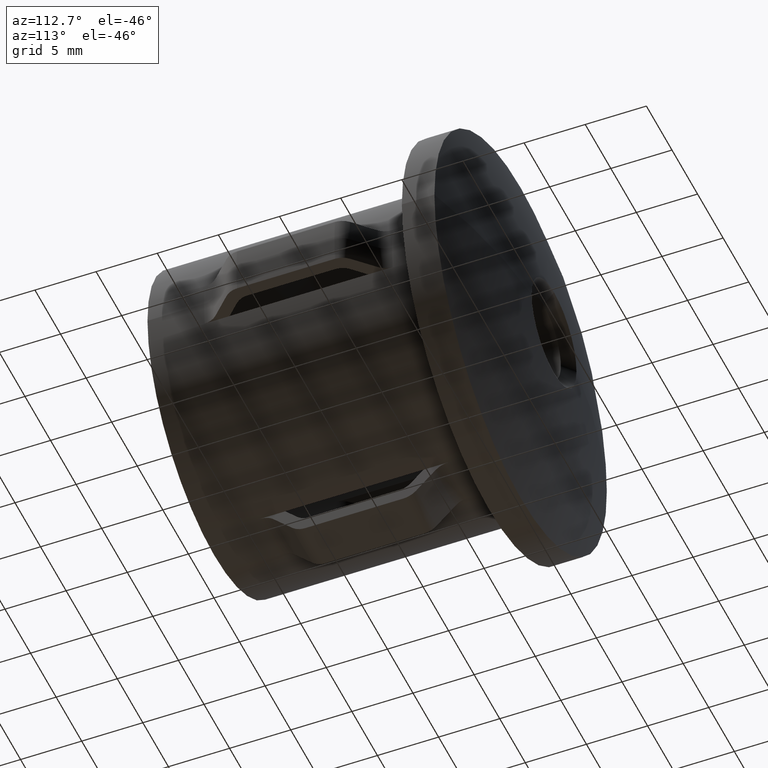
[diagram: clean part render]
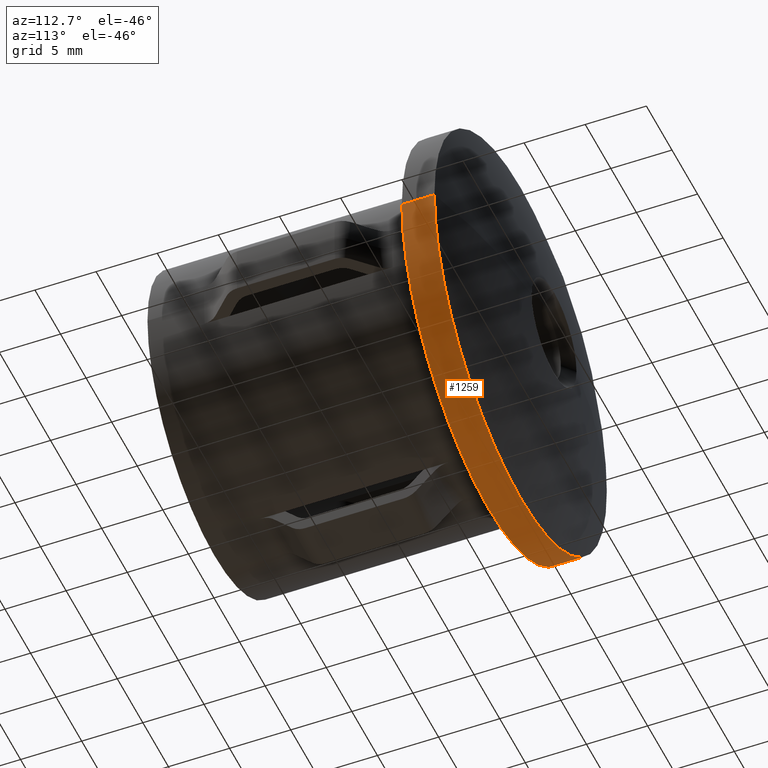
[diagram: same view with one face highlighted and labeled with its STEP entity id]
A machine part, auxiliary view. The second image highlights one B-rep face of the part: STEP entity #1259.
In plain terms, the highlighted cylindrical surface (partial cylindrical patch) has radius 16.85 mm, axis along (-0, -1, -0).
Its self-contained STEP definition (entity closure, byte-faithful):
#22 = ORIENTED_EDGE ( 'NONE', *, *, #10143, .T. ) ;
#319 = DIRECTION ( 'NONE',  ( -2.904862207577519400E-015, -1.000000000000000000, -0.0000000000000000000 ) ) ;
#417 = EDGE_CURVE ( 'NONE', #5926, #6443, #7451, .T. ) ;
#742 = DIRECTION ( 'NONE',  ( 1.000000000000000000, -2.882626547617244000E-015, 0.0000000000000000000 ) ) ;
#962 = CARTESIAN_POINT ( 'NONE',  ( -16.84999999999988400, 22.41089393380872600, 2.063529856563291000E-015 ) ) ;
#1259 = ADVANCED_FACE ( 'NONE', ( #8495 ), #16773, .T. ) ;
#2823 = AXIS2_PLACEMENT_3D ( 'NONE', #13976, #10565, #9262 ) ;
#3203 = EDGE_CURVE ( 'NONE', #9974, #15199, #15760, .T. ) ;
#3285 = ORIENTED_EDGE ( 'NONE', *, *, #14130, .F. ) ;
#4179 = ORIENTED_EDGE ( 'NONE', *, *, #417, .T. ) ;
#5393 = DIRECTION ( 'NONE',  ( 1.000000000000000000, -2.882626547617246700E-015, 0.0000000000000000000 ) ) ;
#5926 = VERTEX_POINT ( 'NONE', #11259 ) ;
#6443 = VERTEX_POINT ( 'NONE', #11356 ) ;
#7265 = VECTOR ( 'NONE', #319, 1000.000000000000000 ) ;
#7420 = CARTESIAN_POINT ( 'NONE',  ( -8.973427466877625400E-015, 22.41089393380867600, 0.0000000000000000000 ) ) ;
#7431 = CIRCLE ( 'NONE', #9594, 16.84999999999999800 ) ;
#7451 = LINE ( 'NONE', #16857, #12355 ) ;
#8495 = FACE_OUTER_BOUND ( 'NONE', #10131, .T. ) ;
#9262 = DIRECTION ( 'NONE',  ( 1.000000000000000000, -2.882626547617245500E-015, 0.0000000000000000000 ) ) ;
#9529 = DIRECTION ( 'NONE',  ( -2.904862207577519400E-015, -1.000000000000000000, -0.0000000000000000000 ) ) ;
#9594 = AXIS2_PLACEMENT_3D ( 'NONE', #12301, #9529, #5393 ) ;
#9974 = VERTEX_POINT ( 'NONE', #16928 ) ;
#10131 = EDGE_LOOP ( 'NONE', ( #17232, #22, #4179, #3285 ) ) ;
#10143 = EDGE_CURVE ( 'NONE', #9974, #5926, #7431, .T. ) ;
#10565 = DIRECTION ( 'NONE',  ( -2.904862207577519400E-015, -1.000000000000000000, -0.0000000000000000000 ) ) ;
#11259 = CARTESIAN_POINT ( 'NONE',  ( 16.85000000000000100, 25.07523234143406300, 0.0000000000000000000 ) ) ;
#11356 = CARTESIAN_POINT ( 'NONE',  ( 16.84999999999999800, 22.41089393380863000, 0.0000000000000000000 ) ) ;
#11513 = DIRECTION ( 'NONE',  ( -2.904862207577519400E-015, -1.000000000000000000, -0.0000000000000000000 ) ) ;
#12301 = CARTESIAN_POINT ( 'NONE',  ( -1.233891518369220700E-015, 25.07523234143411600, 0.0000000000000000000 ) ) ;
#12355 = VECTOR ( 'NONE', #11513, 1000.000000000000000 ) ;
#13138 = AXIS2_PLACEMENT_3D ( 'NONE', #7420, #17040, #742 ) ;
#13976 = CARTESIAN_POINT ( 'NONE',  ( 0.0000000000000000000, 25.50000000000000000, 0.0000000000000000000 ) ) ;
#14130 = EDGE_CURVE ( 'NONE', #15199, #6443, #17260, .T. ) ;
#15199 = VERTEX_POINT ( 'NONE', #962 ) ;
#15760 = LINE ( 'NONE', #16446, #7265 ) ;
#16446 = CARTESIAN_POINT ( 'NONE',  ( -16.85000000000000500, 25.50000000000004600, 2.063529856563290600E-015 ) ) ;
#16773 = CYLINDRICAL_SURFACE ( 'NONE', #2823, 16.85000000000000500 ) ;
#16857 = CARTESIAN_POINT ( 'NONE',  ( 16.85000000000000500, 25.49999999999995000, 0.0000000000000000000 ) ) ;
#16928 = CARTESIAN_POINT ( 'NONE',  ( -16.84999999999986600, 25.07523234143416600, 2.063529856563290200E-015 ) ) ;
#17040 = DIRECTION ( 'NONE',  ( -2.904862207577519400E-015, -1.000000000000000000, -0.0000000000000000000 ) ) ;
#17232 = ORIENTED_EDGE ( 'NONE', *, *, #3203, .F. ) ;
#17260 = CIRCLE ( 'NONE', #13138, 16.85000000000001200 ) ;